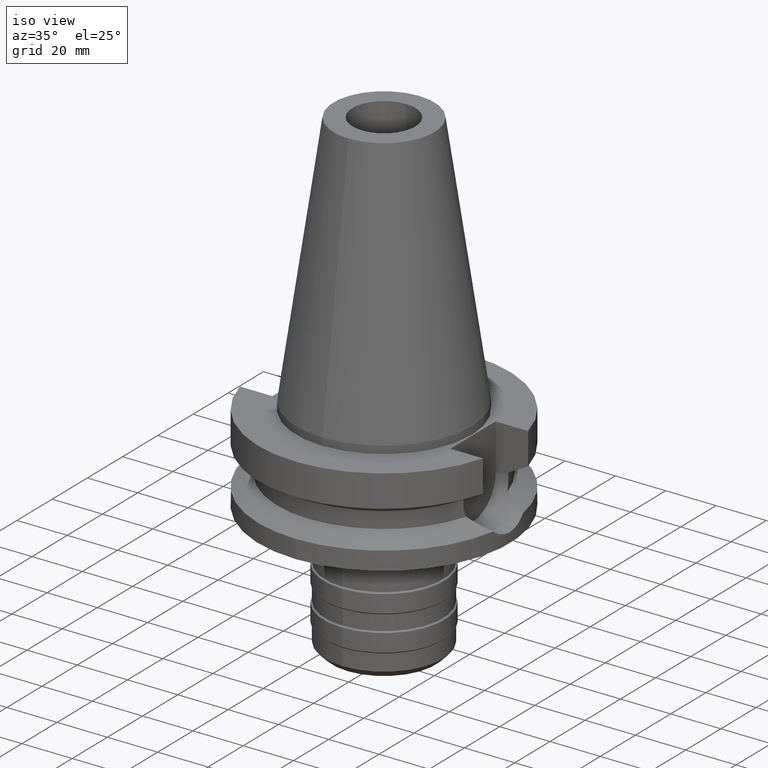
[diagram: clean part render]
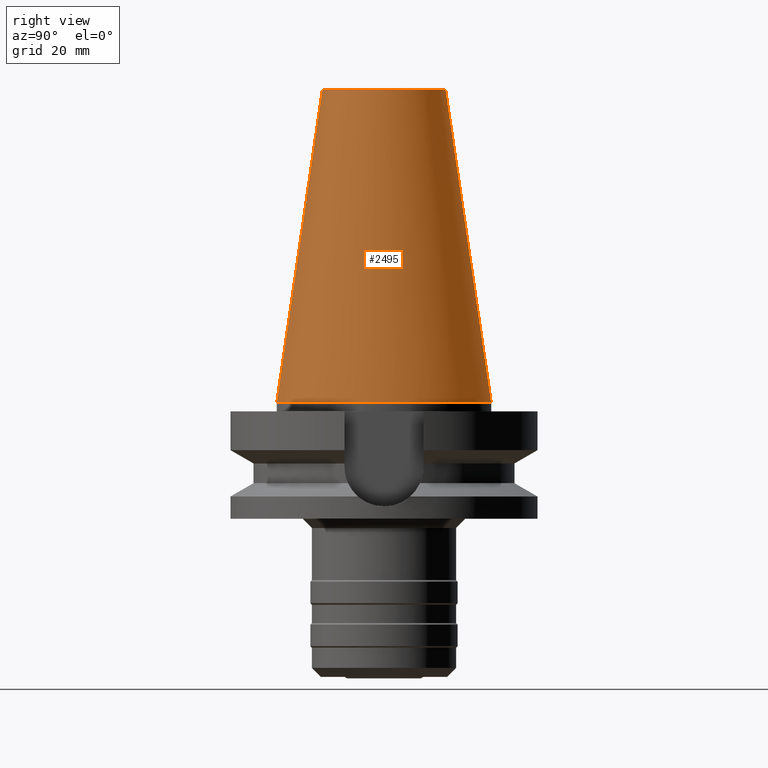
[diagram: tour spotlight — one face highlighted and labeled with its STEP entity id]
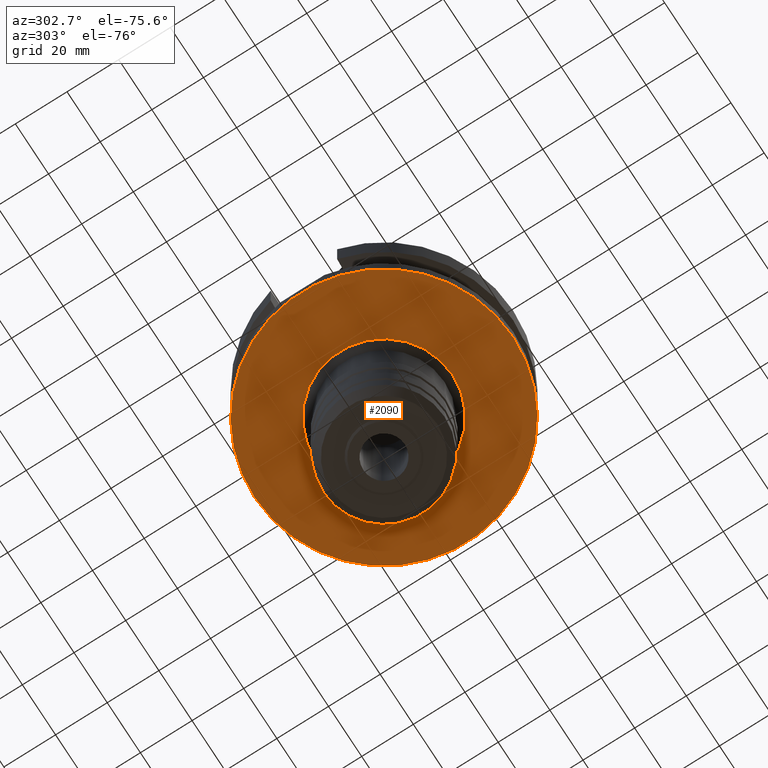
[diagram: tour spotlight — one face highlighted and labeled with its STEP entity id]
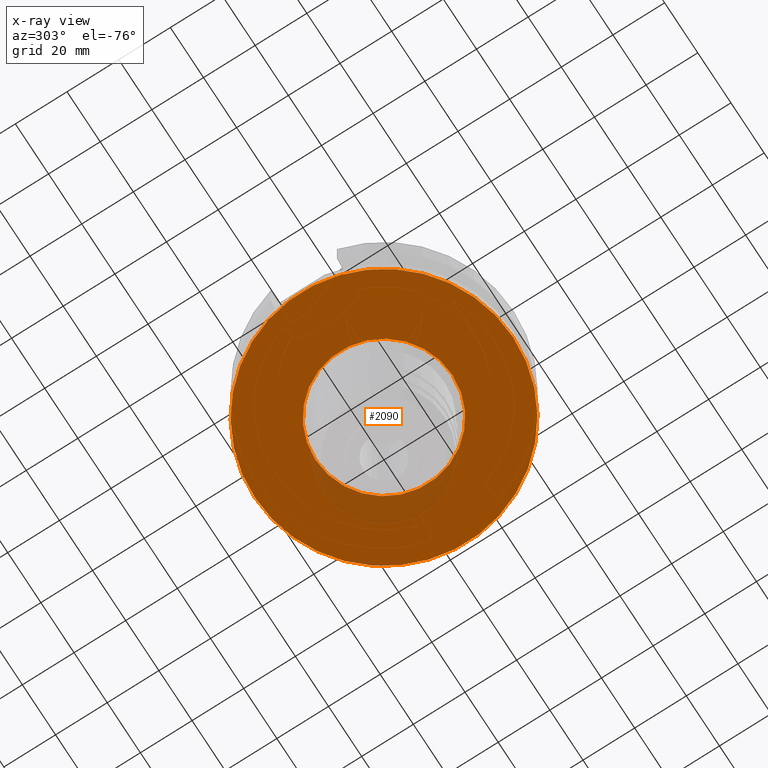
[diagram: x-ray of the same camera — body ghosted, this tour face saturated]
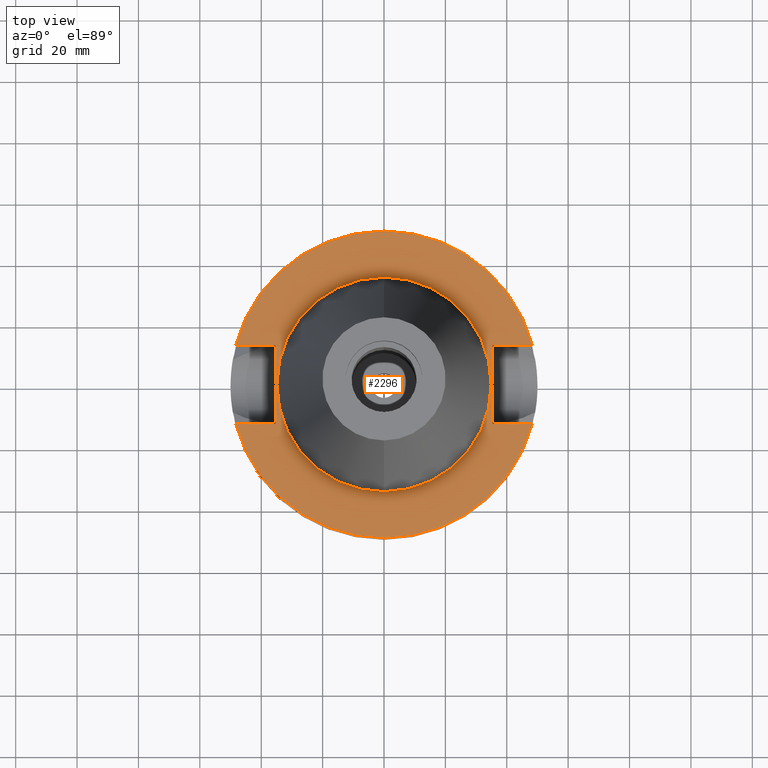
[diagram: tour spotlight — one face highlighted and labeled with its STEP entity id]
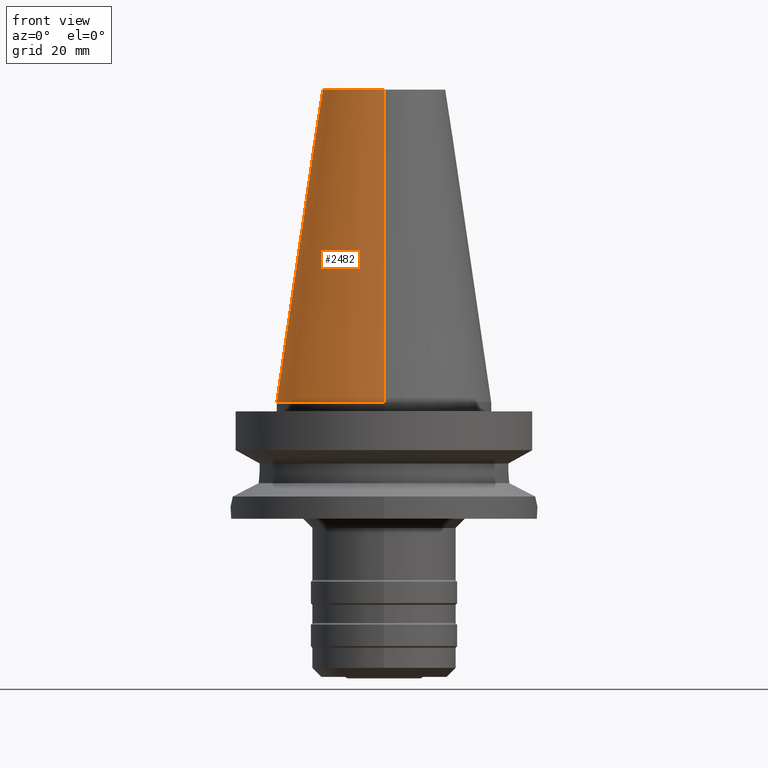
[diagram: tour spotlight — one face highlighted and labeled with its STEP entity id]
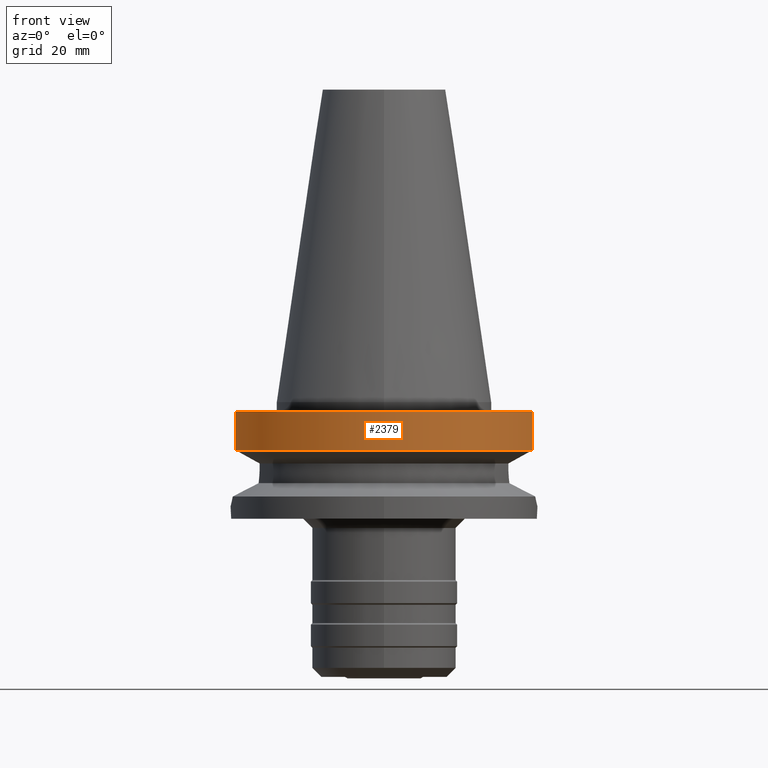
[diagram: tour spotlight — one face highlighted and labeled with its STEP entity id]
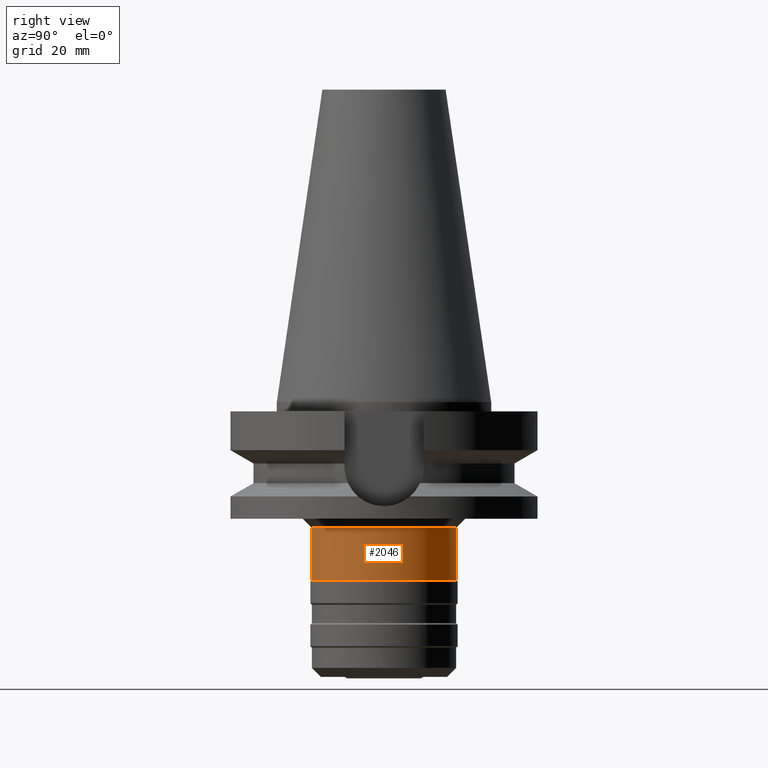
[diagram: tour spotlight — one face highlighted and labeled with its STEP entity id]
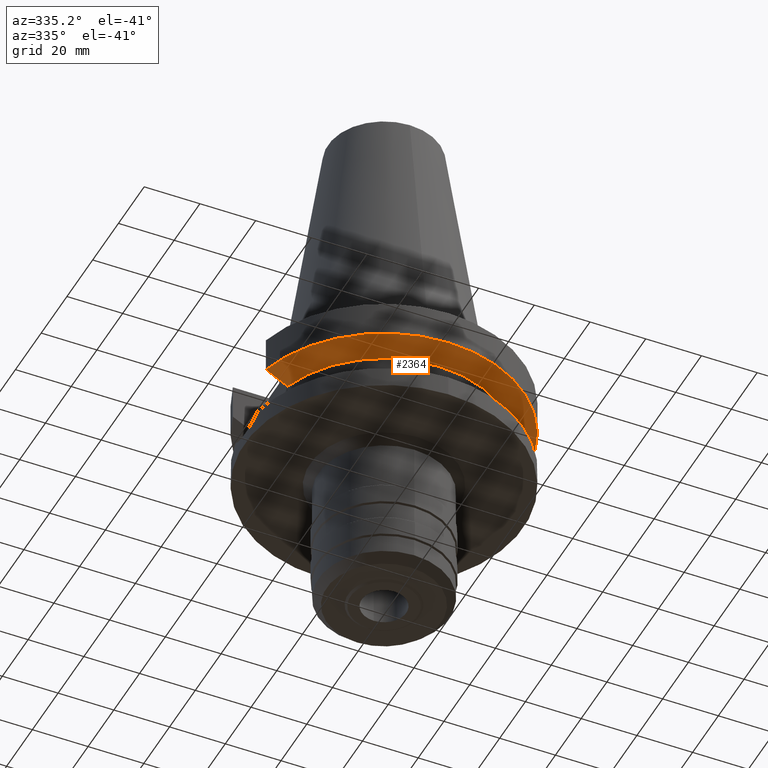
[diagram: tour spotlight — one face highlighted and labeled with its STEP entity id]
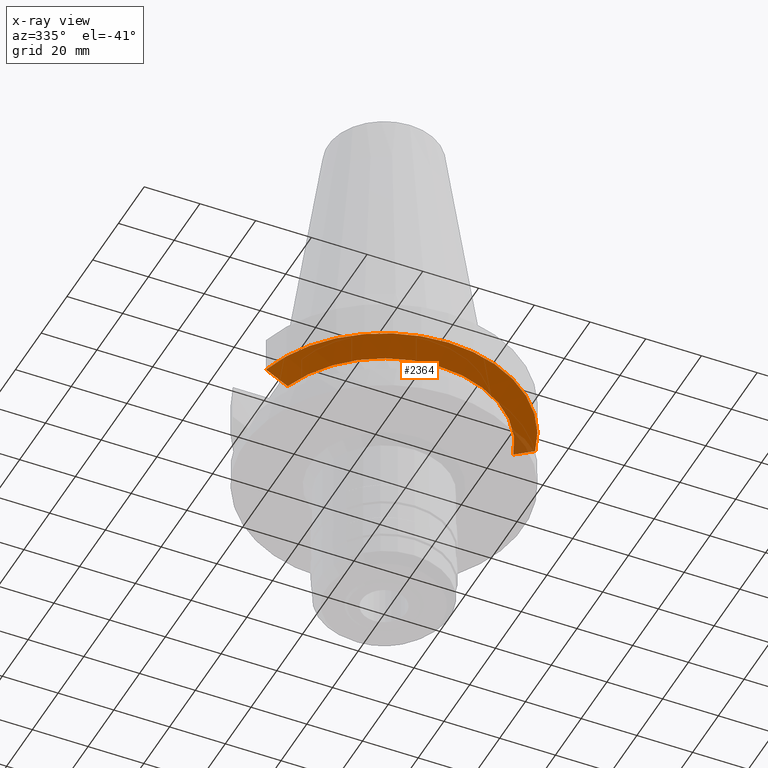
[diagram: x-ray of the same camera — body ghosted, this tour face saturated]
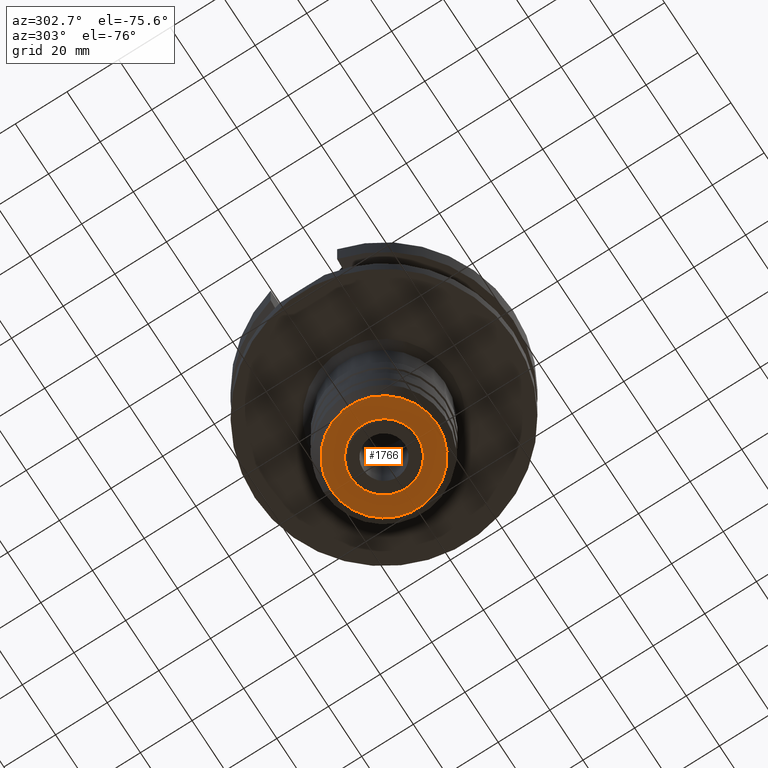
[diagram: tour spotlight — one face highlighted and labeled with its STEP entity id]
A machine part: a face-by-face anatomy tour. The part has 67 B-rep faces; the first image is the clean iso view, then the 8 largest visible faces are spotlighted one at a time (largest first), each with its STEP entity span.

Face 1 — right view, entity #2495. In plain terms, the highlighted conical surface has half-angle 8.297 deg.
Definition (entity closure, byte-faithful):
#1218=DIRECTION('',(0.E0,-1.443043893539E-1,-9.895333461856E-1));
#1219=VECTOR('',#1218,1.028767755957E2);
#1220=CARTESIAN_POINT('',(0.E0,-2.007942971896E1,1.018E2));
#1221=LINE('',#1220,#1219);
#1233=DIRECTION('',(0.E0,1.443043893539E-1,-9.895333461856E-1));
#1234=VECTOR('',#1233,1.028767755957E2);
#1235=CARTESIAN_POINT('',(0.E0,2.007942971896E1,1.018E2));
#1236=LINE('',#1235,#1234);
#1240=CARTESIAN_POINT('',(0.E0,1.847992019913E-14,3.979039320257E-13));
#1241=DIRECTION('',(0.E0,0.E0,-1.E0));
#1242=DIRECTION('',(0.E0,1.E0,0.E0));
#1243=AXIS2_PLACEMENT_3D('',#1240,#1241,#1242);
#1256=CARTESIAN_POINT('',(0.E0,1.847992019913E-14,1.018E2));
#1257=DIRECTION('',(0.E0,0.E0,-1.E0));
#1258=DIRECTION('',(0.E0,1.E0,0.E0));
#1259=AXIS2_PLACEMENT_3D('',#1256,#1257,#1258);
#1457=CARTESIAN_POINT('',(0.E0,3.4925E1,4.902744876745E-13));
#1458=VERTEX_POINT('',#1457);
#1459=CARTESIAN_POINT('',(0.E0,-3.4925E1,4.902744876745E-13));
#1460=VERTEX_POINT('',#1459);
#1461=CARTESIAN_POINT('',(0.E0,2.007942971896E1,1.018E2));
#1462=VERTEX_POINT('',#1461);
#1463=CARTESIAN_POINT('',(0.E0,-2.007942971896E1,1.018E2));
#1464=VERTEX_POINT('',#1463);
#2483=CARTESIAN_POINT('',(0.E0,1.847992019913E-14,5.09E1));
#2484=DIRECTION('',(0.E0,0.E0,-1.E0));
#2485=DIRECTION('',(0.E0,-1.E0,0.E0));
#2486=AXIS2_PLACEMENT_3D('',#2483,#2484,#2485);
#2487=CONICAL_SURFACE('',#2486,2.750221485948E1,8.297E0);
#2488=ORIENTED_EDGE('',*,*,#2473,.T.);
#2489=ORIENTED_EDGE('',*,*,#2450,.T.);
#2490=ORIENTED_EDGE('',*,*,#2477,.F.);
#2492=ORIENTED_EDGE('',*,*,#2491,.F.);
#2493=EDGE_LOOP('',(#2488,#2489,#2490,#2492));
#2494=FACE_OUTER_BOUND('',#2493,.F.);
#1244=CIRCLE('',#1243,3.4925E1);
#1260=CIRCLE('',#1259,2.007942971896E1);
#2450=EDGE_CURVE('',#1458,#1460,#1244,.T.);
#2473=EDGE_CURVE('',#1462,#1458,#1236,.T.);
#2477=EDGE_CURVE('',#1464,#1460,#1221,.T.);
#2491=EDGE_CURVE('',#1462,#1464,#1260,.T.);
#2495=ADVANCED_FACE('',(#2494),#2487,.T.);

Face 2 — auxiliary view, entity #2090. An x-ray twin of the same camera follows (body ghosted, this face saturated) — the face is partly hidden behind the body. In plain terms, the highlighted planar face has unit normal (0, 0, -1).
Definition (entity closure, byte-faithful):
#638=CARTESIAN_POINT('',(0.E0,2.588780868718E-14,-3.8E1));
#639=DIRECTION('',(0.E0,0.E0,1.E0));
#640=DIRECTION('',(0.E0,-1.E0,0.E0));
#641=AXIS2_PLACEMENT_3D('',#638,#639,#640);
#646=CARTESIAN_POINT('',(0.E0,2.588780868718E-14,-3.8E1));
#647=DIRECTION('',(0.E0,0.E0,1.E0));
#648=DIRECTION('',(0.E0,1.E0,0.E0));
#649=AXIS2_PLACEMENT_3D('',#646,#647,#648);
#654=CARTESIAN_POINT('',(0.E0,0.E0,-3.8E1));
#655=DIRECTION('',(0.E0,0.E0,-1.E0));
#656=DIRECTION('',(0.E0,-1.E0,0.E0));
#657=AXIS2_PLACEMENT_3D('',#654,#655,#656);
#662=CARTESIAN_POINT('',(0.E0,0.E0,-3.8E1));
#663=DIRECTION('',(0.E0,0.E0,-1.E0));
#664=DIRECTION('',(0.E0,1.E0,0.E0));
#665=AXIS2_PLACEMENT_3D('',#662,#663,#664);
#1376=CARTESIAN_POINT('',(0.E0,2.65E1,-3.8E1));
#1377=VERTEX_POINT('',#1376);
#1378=CARTESIAN_POINT('',(0.E0,-2.65E1,-3.8E1));
#1379=VERTEX_POINT('',#1378);
#1380=CARTESIAN_POINT('',(0.E0,-5.E1,-3.8E1));
#1381=CARTESIAN_POINT('',(0.E0,5.E1,-3.8E1));
#1382=VERTEX_POINT('',#1380);
#1383=VERTEX_POINT('',#1381);
#2075=CARTESIAN_POINT('',(0.E0,0.E0,-3.8E1));
#2076=DIRECTION('',(0.E0,0.E0,-1.E0));
#2077=DIRECTION('',(0.E0,-1.E0,0.E0));
#2078=AXIS2_PLACEMENT_3D('',#2075,#2076,#2077);
#2079=PLANE('',#2078);
#2081=ORIENTED_EDGE('',*,*,#2080,.T.);
#2083=ORIENTED_EDGE('',*,*,#2082,.T.);
#2084=EDGE_LOOP('',(#2081,#2083));
#2085=FACE_OUTER_BOUND('',#2084,.F.);
#2086=ORIENTED_EDGE('',*,*,#2068,.T.);
#2087=ORIENTED_EDGE('',*,*,#2057,.T.);
#2088=EDGE_LOOP('',(#2086,#2087));
#2089=FACE_BOUND('',#2088,.F.);
#642=CIRCLE('',#641,5.E1);
#650=CIRCLE('',#649,5.E1);
#658=CIRCLE('',#657,2.65E1);
#666=CIRCLE('',#665,2.65E1);
#2057=EDGE_CURVE('',#1377,#1379,#666,.T.);
#2068=EDGE_CURVE('',#1379,#1377,#658,.T.);
#2080=EDGE_CURVE('',#1382,#1383,#642,.T.);
#2082=EDGE_CURVE('',#1383,#1382,#650,.T.);
#2090=ADVANCED_FACE('',(#2085,#2089),#2079,.T.);

Face 3 — top view, entity #2296. In plain terms, the highlighted planar face has unit normal (0, 0, -1).
Definition (entity closure, byte-faithful):
#888=DIRECTION('',(1.E0,0.E0,0.E0));
#889=VECTOR('',#888,1.292057015392E1);
#890=CARTESIAN_POINT('',(3.54E1,1.285E1,-3.E0));
#891=LINE('',#890,#889);
#935=DIRECTION('',(0.E0,1.E0,0.E0));
#936=VECTOR('',#935,2.57E1);
#937=CARTESIAN_POINT('',(-3.54E1,-1.285E1,-3.E0));
#938=LINE('',#937,#936);
#942=DIRECTION('',(-1.E0,0.E0,0.E0));
#943=VECTOR('',#942,1.292057015392E1);
#944=CARTESIAN_POINT('',(-3.54E1,1.285E1,-3.E0));
#945=LINE('',#944,#943);
#949=CARTESIAN_POINT('',(0.E0,2.588780868718E-14,-3.E0));
#950=DIRECTION('',(0.E0,0.E0,-1.E0));
#951=DIRECTION('',(-9.664114030784E-1,2.57E-1,0.E0));
#952=AXIS2_PLACEMENT_3D('',#949,#950,#951);
#957=CARTESIAN_POINT('',(0.E0,2.588780868718E-14,-3.E0));
#958=DIRECTION('',(0.E0,0.E0,-1.E0));
#959=DIRECTION('',(0.E0,1.E0,0.E0));
#960=AXIS2_PLACEMENT_3D('',#957,#958,#959);
#965=DIRECTION('',(0.E0,-1.E0,0.E0));
#966=VECTOR('',#965,2.57E1);
#967=CARTESIAN_POINT('',(3.54E1,1.285E1,-3.E0));
#968=LINE('',#967,#966);
#972=DIRECTION('',(1.E0,0.E0,0.E0));
#973=VECTOR('',#972,1.292057015392E1);
#974=CARTESIAN_POINT('',(3.54E1,-1.285E1,-3.E0));
#975=LINE('',#974,#973);
#979=CARTESIAN_POINT('',(0.E0,2.588780868718E-14,-3.E0));
#980=DIRECTION('',(0.E0,0.E0,-1.E0));
#981=DIRECTION('',(9.664114030784E-1,-2.57E-1,0.E0));
#982=AXIS2_PLACEMENT_3D('',#979,#980,#981);
#987=CARTESIAN_POINT('',(0.E0,2.588780868718E-14,-3.E0));
#988=DIRECTION('',(0.E0,0.E0,-1.E0));
#989=DIRECTION('',(0.E0,-1.E0,0.E0));
#990=AXIS2_PLACEMENT_3D('',#987,#988,#989);
#995=CARTESIAN_POINT('',(0.E0,2.588780868718E-14,-3.E0));
#996=DIRECTION('',(0.E0,0.E0,1.E0));
#997=DIRECTION('',(0.E0,-1.E0,0.E0));
#998=AXIS2_PLACEMENT_3D('',#995,#996,#997);
#1003=CARTESIAN_POINT('',(0.E0,2.588780868718E-14,-3.E0));
#1004=DIRECTION('',(0.E0,0.E0,1.E0));
#1005=DIRECTION('',(0.E0,1.E0,0.E0));
#1006=AXIS2_PLACEMENT_3D('',#1003,#1004,#1005);
#1041=DIRECTION('',(-1.E0,0.E0,0.E0));
#1042=VECTOR('',#1041,1.292057015392E1);
#1043=CARTESIAN_POINT('',(-3.54E1,-1.285E1,-3.E0));
#1044=LINE('',#1043,#1042);
#1431=CARTESIAN_POINT('',(-3.54E1,-1.285E1,-3.E0));
#1432=VERTEX_POINT('',#1431);
#1433=CARTESIAN_POINT('',(-4.832057015392E1,-1.285E1,-3.E0));
#1434=VERTEX_POINT('',#1433);
#1437=CARTESIAN_POINT('',(-3.54E1,1.285E1,-3.E0));
#1438=VERTEX_POINT('',#1437);
#1439=CARTESIAN_POINT('',(-4.832057015392E1,1.285E1,-3.E0));
#1440=VERTEX_POINT('',#1439);
#1441=CARTESIAN_POINT('',(-1.065814103640E-14,5.E1,-3.E0));
#1442=CARTESIAN_POINT('',(4.832057015392E1,1.285E1,-3.E0));
#1443=VERTEX_POINT('',#1441);
#1444=VERTEX_POINT('',#1442);
#1445=CARTESIAN_POINT('',(3.54E1,1.285E1,-3.E0));
#1446=VERTEX_POINT('',#1445);
#1447=CARTESIAN_POINT('',(3.54E1,-1.285E1,-3.E0));
#1448=VERTEX_POINT('',#1447);
#1449=CARTESIAN_POINT('',(4.832057015392E1,-1.285E1,-3.E0));
#1450=VERTEX_POINT('',#1449);
#1451=CARTESIAN_POINT('',(1.065814103640E-14,-5.E1,-3.E0));
#1452=VERTEX_POINT('',#1451);
#1453=CARTESIAN_POINT('',(0.E0,-3.4925E1,-3.E0));
#1454=CARTESIAN_POINT('',(0.E0,3.4925E1,-3.E0));
#1455=VERTEX_POINT('',#1453);
#1456=VERTEX_POINT('',#1454);
#2265=CARTESIAN_POINT('',(0.E0,1.187907395173E-14,-3.E0));
#2266=DIRECTION('',(0.E0,0.E0,-1.E0));
#2267=DIRECTION('',(0.E0,-1.E0,0.E0));
#2268=AXIS2_PLACEMENT_3D('',#2265,#2266,#2267);
#2269=PLANE('',#2268);
#2271=ORIENTED_EDGE('',*,*,#2270,.T.);
#2273=ORIENTED_EDGE('',*,*,#2272,.T.);
#2275=ORIENTED_EDGE('',*,*,#2274,.T.);
#2277=ORIENTED_EDGE('',*,*,#2276,.T.);
#2278=ORIENTED_EDGE('',*,*,#2241,.F.);
#2279=ORIENTED_EDGE('',*,*,#2255,.T.);
#2281=ORIENTED_EDGE('',*,*,#2280,.T.);
#2283=ORIENTED_EDGE('',*,*,#2282,.T.);
#2285=ORIENTED_EDGE('',*,*,#2284,.T.);
#2287=ORIENTED_EDGE('',*,*,#2286,.F.);
#2288=EDGE_LOOP('',(#2271,#2273,#2275,#2277,#2278,#2279,#2281,#2283,#2285,
#2287));
#2289=FACE_OUTER_BOUND('',#2288,.F.);
#2291=ORIENTED_EDGE('',*,*,#2290,.T.);
#2293=ORIENTED_EDGE('',*,*,#2292,.T.);
#2294=EDGE_LOOP('',(#2291,#2293));
#2295=FACE_BOUND('',#2294,.F.);
#953=CIRCLE('',#952,5.E1);
#961=CIRCLE('',#960,5.E1);
#983=CIRCLE('',#982,5.E1);
#991=CIRCLE('',#990,5.E1);
#999=CIRCLE('',#998,3.4925E1);
#1007=CIRCLE('',#1006,3.4925E1);
#2241=EDGE_CURVE('',#1446,#1444,#891,.T.);
#2255=EDGE_CURVE('',#1446,#1448,#968,.T.);
#2270=EDGE_CURVE('',#1432,#1438,#938,.T.);
#2272=EDGE_CURVE('',#1438,#1440,#945,.T.);
#2274=EDGE_CURVE('',#1440,#1443,#953,.T.);
#2276=EDGE_CURVE('',#1443,#1444,#961,.T.);
#2280=EDGE_CURVE('',#1448,#1450,#975,.T.);
#2282=EDGE_CURVE('',#1450,#1452,#983,.T.);
#2284=EDGE_CURVE('',#1452,#1434,#991,.T.);
#2286=EDGE_CURVE('',#1432,#1434,#1044,.T.);
#2290=EDGE_CURVE('',#1455,#1456,#999,.T.);
#2292=EDGE_CURVE('',#1456,#1455,#1007,.T.);
#2296=ADVANCED_FACE('',(#2289,#2295),#2269,.F.);

Face 4 — front view, entity #2482. In plain terms, the highlighted conical surface has half-angle 8.297 deg.
Definition (entity closure, byte-faithful):
#1218=DIRECTION('',(0.E0,-1.443043893539E-1,-9.895333461856E-1));
#1219=VECTOR('',#1218,1.028767755957E2);
#1220=CARTESIAN_POINT('',(0.E0,-2.007942971896E1,1.018E2));
#1221=LINE('',#1220,#1219);
#1225=CARTESIAN_POINT('',(0.E0,1.847992019913E-14,3.979039320257E-13));
#1226=DIRECTION('',(0.E0,0.E0,-1.E0));
#1227=DIRECTION('',(0.E0,-1.E0,0.E0));
#1228=AXIS2_PLACEMENT_3D('',#1225,#1226,#1227);
#1233=DIRECTION('',(0.E0,1.443043893539E-1,-9.895333461856E-1));
#1234=VECTOR('',#1233,1.028767755957E2);
#1235=CARTESIAN_POINT('',(0.E0,2.007942971896E1,1.018E2));
#1236=LINE('',#1235,#1234);
#1248=CARTESIAN_POINT('',(0.E0,1.847992019913E-14,1.018E2));
#1249=DIRECTION('',(0.E0,0.E0,-1.E0));
#1250=DIRECTION('',(0.E0,-1.E0,0.E0));
#1251=AXIS2_PLACEMENT_3D('',#1248,#1249,#1250);
#1457=CARTESIAN_POINT('',(0.E0,3.4925E1,4.902744876745E-13));
#1458=VERTEX_POINT('',#1457);
#1459=CARTESIAN_POINT('',(0.E0,-3.4925E1,4.902744876745E-13));
#1460=VERTEX_POINT('',#1459);
#1461=CARTESIAN_POINT('',(0.E0,2.007942971896E1,1.018E2));
#1462=VERTEX_POINT('',#1461);
#1463=CARTESIAN_POINT('',(0.E0,-2.007942971896E1,1.018E2));
#1464=VERTEX_POINT('',#1463);
#2468=CARTESIAN_POINT('',(0.E0,1.847992019913E-14,5.09E1));
#2469=DIRECTION('',(0.E0,0.E0,-1.E0));
#2470=DIRECTION('',(0.E0,-1.E0,0.E0));
#2471=AXIS2_PLACEMENT_3D('',#2468,#2469,#2470);
#2472=CONICAL_SURFACE('',#2471,2.750221485948E1,8.297E0);
#2474=ORIENTED_EDGE('',*,*,#2473,.F.);
#2476=ORIENTED_EDGE('',*,*,#2475,.F.);
#2478=ORIENTED_EDGE('',*,*,#2477,.T.);
#2479=ORIENTED_EDGE('',*,*,#2461,.T.);
#2480=EDGE_LOOP('',(#2474,#2476,#2478,#2479));
#2481=FACE_OUTER_BOUND('',#2480,.F.);
#1229=CIRCLE('',#1228,3.4925E1);
#1252=CIRCLE('',#1251,2.007942971896E1);
#2461=EDGE_CURVE('',#1460,#1458,#1229,.T.);
#2473=EDGE_CURVE('',#1462,#1458,#1236,.T.);
#2475=EDGE_CURVE('',#1464,#1462,#1252,.T.);
#2477=EDGE_CURVE('',#1464,#1460,#1221,.T.);
#2482=ADVANCED_FACE('',(#2481),#2472,.T.);

Face 5 — front view, entity #2379. In plain terms, the highlighted cylindrical surface (partial cylindrical patch) has radius 50 mm, axis along (0, 0, -1).
Definition (entity closure, byte-faithful):
#979=CARTESIAN_POINT('',(0.E0,2.588780868718E-14,-3.E0));
#980=DIRECTION('',(0.E0,0.E0,-1.E0));
#981=DIRECTION('',(9.664114030784E-1,-2.57E-1,0.E0));
#982=AXIS2_PLACEMENT_3D('',#979,#980,#981);
#987=CARTESIAN_POINT('',(0.E0,2.588780868718E-14,-3.E0));
#988=DIRECTION('',(0.E0,0.E0,-1.E0));
#989=DIRECTION('',(0.E0,-1.E0,0.E0));
#990=AXIS2_PLACEMENT_3D('',#987,#988,#989);
#1092=CARTESIAN_POINT('',(0.E0,1.006319759054E-14,-1.566269223573E1));
#1093=DIRECTION('',(0.E0,0.E0,1.E0));
#1094=DIRECTION('',(-9.664114030784E-1,-2.57E-1,0.E0));
#1095=AXIS2_PLACEMENT_3D('',#1092,#1093,#1094);
#1100=CARTESIAN_POINT('',(0.E0,1.006319759054E-14,-1.566269223573E1));
#1101=DIRECTION('',(0.E0,0.E0,1.E0));
#1102=DIRECTION('',(0.E0,-1.E0,0.E0));
#1103=AXIS2_PLACEMENT_3D('',#1100,#1101,#1102);
#1124=DIRECTION('',(-8.078179312879E-8,3.037680749380E-7,1.E0));
#1125=VECTOR('',#1124,1.266265777902E1);
#1126=CARTESIAN_POINT('',(-4.832056913101E1,-1.285000384651E1,
-1.566265777902E1));
#1127=LINE('',#1126,#1125);
#1131=DIRECTION('',(-8.069162171509E-8,-3.034290000932E-7,-1.E0));
#1132=VECTOR('',#1131,1.266265781748E1);
#1133=CARTESIAN_POINT('',(4.832057015392E1,-1.285E1,-3.E0));
#1134=LINE('',#1133,#1132);
#1433=CARTESIAN_POINT('',(-4.832057015392E1,-1.285E1,-3.E0));
#1434=VERTEX_POINT('',#1433);
#1435=CARTESIAN_POINT('',(-4.832056913101E1,-1.285000384651E1,
-1.566265777902E1));
#1436=VERTEX_POINT('',#1435);
#1449=CARTESIAN_POINT('',(4.832057015392E1,-1.285E1,-3.E0));
#1450=VERTEX_POINT('',#1449);
#1451=CARTESIAN_POINT('',(1.065814103640E-14,-5.E1,-3.E0));
#1452=VERTEX_POINT('',#1451);
#1466=CARTESIAN_POINT('',(0.E0,-5.E1,-1.566269223573E1));
#1467=CARTESIAN_POINT('',(4.832057015392E1,-1.285E1,-1.566269223573E1));
#1468=VERTEX_POINT('',#1466);
#1469=VERTEX_POINT('',#1467);
#2365=CARTESIAN_POINT('',(0.E0,2.588780868718E-14,1.1139E2));
#2366=DIRECTION('',(0.E0,0.E0,-1.E0));
#2367=DIRECTION('',(0.E0,-1.E0,0.E0));
#2368=AXIS2_PLACEMENT_3D('',#2365,#2366,#2367);
#2369=CYLINDRICAL_SURFACE('',#2368,5.E1);
#2370=ORIENTED_EDGE('',*,*,#2322,.T.);
#2371=ORIENTED_EDGE('',*,*,#2284,.F.);
#2372=ORIENTED_EDGE('',*,*,#2282,.F.);
#2374=ORIENTED_EDGE('',*,*,#2373,.T.);
#2375=ORIENTED_EDGE('',*,*,#2356,.F.);
#2376=ORIENTED_EDGE('',*,*,#2354,.F.);
#2377=EDGE_LOOP('',(#2370,#2371,#2372,#2374,#2375,#2376));
#2378=FACE_OUTER_BOUND('',#2377,.F.);
#983=CIRCLE('',#982,5.E1);
#991=CIRCLE('',#990,5.E1);
#1096=CIRCLE('',#1095,5.E1);
#1104=CIRCLE('',#1103,5.E1);
#2282=EDGE_CURVE('',#1450,#1452,#983,.T.);
#2284=EDGE_CURVE('',#1452,#1434,#991,.T.);
#2322=EDGE_CURVE('',#1436,#1434,#1127,.T.);
#2354=EDGE_CURVE('',#1436,#1468,#1096,.T.);
#2356=EDGE_CURVE('',#1468,#1469,#1104,.T.);
#2373=EDGE_CURVE('',#1450,#1469,#1134,.T.);
#2379=ADVANCED_FACE('',(#2378),#2369,.T.);

Face 6 — right view, entity #2046. In plain terms, the highlighted cylindrical surface (partial cylindrical patch) has radius 23.5 mm, axis along (0, 0, -1).
Definition (entity closure, byte-faithful):
#563=CARTESIAN_POINT('',(0.E0,0.E0,-5.8E1));
#564=DIRECTION('',(0.E0,0.E0,1.E0));
#565=DIRECTION('',(0.E0,-1.E0,0.E0));
#566=AXIS2_PLACEMENT_3D('',#563,#564,#565);
#594=DIRECTION('',(0.E0,0.E0,-1.E0));
#595=VECTOR('',#594,1.7E1);
#596=CARTESIAN_POINT('',(0.E0,-2.35E1,-4.1E1));
#597=LINE('',#596,#595);
#601=DIRECTION('',(0.E0,0.E0,-1.E0));
#602=VECTOR('',#601,1.7E1);
#603=CARTESIAN_POINT('',(0.E0,2.35E1,-4.1E1));
#604=LINE('',#603,#602);
#615=CARTESIAN_POINT('',(0.E0,0.E0,-4.1E1));
#616=DIRECTION('',(0.E0,0.E0,-1.E0));
#617=DIRECTION('',(0.E0,1.E0,0.E0));
#618=AXIS2_PLACEMENT_3D('',#615,#616,#617);
#1368=CARTESIAN_POINT('',(0.E0,2.35E1,-5.8E1));
#1369=VERTEX_POINT('',#1368);
#1370=CARTESIAN_POINT('',(0.E0,-2.35E1,-5.8E1));
#1371=VERTEX_POINT('',#1370);
#1372=CARTESIAN_POINT('',(0.E0,2.35E1,-4.1E1));
#1373=VERTEX_POINT('',#1372);
#1374=CARTESIAN_POINT('',(0.E0,-2.35E1,-4.1E1));
#1375=VERTEX_POINT('',#1374);
#2034=CARTESIAN_POINT('',(0.E0,2.588780868718E-14,1.1139E2));
#2035=DIRECTION('',(0.E0,0.E0,-1.E0));
#2036=DIRECTION('',(0.E0,-1.E0,0.E0));
#2037=AXIS2_PLACEMENT_3D('',#2034,#2035,#2036);
#2038=CYLINDRICAL_SURFACE('',#2037,2.35E1);
#2039=ORIENTED_EDGE('',*,*,#2024,.T.);
#2040=ORIENTED_EDGE('',*,*,#2001,.F.);
#2041=ORIENTED_EDGE('',*,*,#2028,.F.);
#2043=ORIENTED_EDGE('',*,*,#2042,.F.);
#2044=EDGE_LOOP('',(#2039,#2040,#2041,#2043));
#2045=FACE_OUTER_BOUND('',#2044,.F.);
#567=CIRCLE('',#566,2.35E1);
#619=CIRCLE('',#618,2.35E1);
#2001=EDGE_CURVE('',#1371,#1369,#567,.T.);
#2024=EDGE_CURVE('',#1373,#1369,#604,.T.);
#2028=EDGE_CURVE('',#1375,#1371,#597,.T.);
#2042=EDGE_CURVE('',#1373,#1375,#619,.T.);
#2046=ADVANCED_FACE('',(#2045),#2038,.T.);

Face 7 — auxiliary view, entity #2364. An x-ray twin of the same camera follows (body ghosted, this face saturated) — the face is partly hidden behind the body. In plain terms, the highlighted conical surface has half-angle 60 deg.
Definition (entity closure, byte-faithful):
#1048=CARTESIAN_POINT('',(-4.832056913101E1,-1.285000384651E1,
-1.566265777902E1));
#1049=CARTESIAN_POINT('',(-4.745408735859E1,-1.285000384651E1,
-1.614611808433E1));
#1050=CARTESIAN_POINT('',(-4.572064906860E1,-1.284999773926E1,
-1.711204634125E1));
#1051=CARTESIAN_POINT('',(-4.311729511248E1,-1.285000214284E1,
-1.855526280760E1));
#1052=CARTESIAN_POINT('',(-4.138011701676E1,-1.284999650721E1,
-1.951445468805E1));
#1053=CARTESIAN_POINT('',(-4.051083299273E1,-1.284999650721E1,
-1.999284605942E1));
#1092=CARTESIAN_POINT('',(0.E0,1.006319759054E-14,-1.566269223573E1));
#1093=DIRECTION('',(0.E0,0.E0,1.E0));
#1094=DIRECTION('',(-9.664114030784E-1,-2.57E-1,0.E0));
#1095=AXIS2_PLACEMENT_3D('',#1092,#1093,#1094);
#1100=CARTESIAN_POINT('',(0.E0,1.006319759054E-14,-1.566269223573E1));
#1101=DIRECTION('',(0.E0,0.E0,1.E0));
#1102=DIRECTION('',(0.E0,-1.E0,0.E0));
#1103=AXIS2_PLACEMENT_3D('',#1100,#1101,#1102);
#1108=CARTESIAN_POINT('',(0.E0,1.006319759054E-14,-1.999281925465E1));
#1109=DIRECTION('',(0.E0,0.E0,-1.E0));
#1110=DIRECTION('',(9.531960443487E-1,-3.023529411765E-1,0.E0));
#1111=AXIS2_PLACEMENT_3D('',#1108,#1109,#1110);
#1116=CARTESIAN_POINT('',(0.E0,1.006319759054E-14,-1.999281925465E1));
#1117=DIRECTION('',(0.E0,0.E0,-1.E0));
#1118=DIRECTION('',(0.E0,-1.E0,0.E0));
#1119=AXIS2_PLACEMENT_3D('',#1116,#1117,#1118);
#1138=CARTESIAN_POINT('',(4.051083299654E1,-1.284999649519E1,
-1.999284615166E1));
#1139=CARTESIAN_POINT('',(4.138011707853E1,-1.284999649519E1,
-1.951445474827E1));
#1140=CARTESIAN_POINT('',(4.311729488159E1,-1.285000214787E1,
-1.855526241239E1));
#1141=CARTESIAN_POINT('',(4.572064880359E1,-1.284999773966E1,
-1.711204586882E1));
#1142=CARTESIAN_POINT('',(4.745408738450E1,-1.285000384222E1,
-1.614611810901E1));
#1143=CARTESIAN_POINT('',(4.832056913215E1,-1.285000384222E1,
-1.566265781748E1));
#1419=CARTESIAN_POINT('',(-4.051083299273E1,-1.284999650721E1,
-1.999284605942E1));
#1420=VERTEX_POINT('',#1419);
#1421=CARTESIAN_POINT('',(4.051083188482E1,-1.285E1,-1.999281925465E1));
#1422=CARTESIAN_POINT('',(0.E0,-4.25E1,-1.999281925465E1));
#1423=VERTEX_POINT('',#1421);
#1424=VERTEX_POINT('',#1422);
#1435=CARTESIAN_POINT('',(-4.832056913101E1,-1.285000384651E1,
-1.566265777902E1));
#1436=VERTEX_POINT('',#1435);
#1466=CARTESIAN_POINT('',(0.E0,-5.E1,-1.566269223573E1));
#1467=CARTESIAN_POINT('',(4.832057015392E1,-1.285E1,-1.566269223573E1));
#1468=VERTEX_POINT('',#1466);
#1469=VERTEX_POINT('',#1467);
#2348=CARTESIAN_POINT('',(0.E0,1.006319759054E-14,-1.782775574519E1));
#2349=DIRECTION('',(0.E0,0.E0,1.E0));
#2350=DIRECTION('',(0.E0,1.E0,0.E0));
#2351=AXIS2_PLACEMENT_3D('',#2348,#2349,#2350);
#2352=CONICAL_SURFACE('',#2351,4.625E1,6.E1);
#2353=ORIENTED_EDGE('',*,*,#2324,.F.);
#2355=ORIENTED_EDGE('',*,*,#2354,.T.);
#2357=ORIENTED_EDGE('',*,*,#2356,.T.);
#2359=ORIENTED_EDGE('',*,*,#2358,.F.);
#2360=ORIENTED_EDGE('',*,*,#2338,.T.);
#2361=ORIENTED_EDGE('',*,*,#2336,.T.);
#2362=EDGE_LOOP('',(#2353,#2355,#2357,#2359,#2360,#2361));
#2363=FACE_OUTER_BOUND('',#2362,.F.);
#1054=B_SPLINE_CURVE_WITH_KNOTS('',3,(#1048,#1049,#1050,#1051,#1052,#1053),
.UNSPECIFIED.,.F.,.F.,(4,1,1,4),(0.E0,3.333333333333E-1,6.666666666667E-1,1.E0),
.UNSPECIFIED.);
#1096=CIRCLE('',#1095,5.E1);
#1104=CIRCLE('',#1103,5.E1);
#1112=CIRCLE('',#1111,4.25E1);
#1120=CIRCLE('',#1119,4.25E1);
#1144=B_SPLINE_CURVE_WITH_KNOTS('',3,(#1138,#1139,#1140,#1141,#1142,#1143),
.UNSPECIFIED.,.F.,.F.,(4,1,1,4),(0.E0,3.333333333333E-1,6.666666666667E-1,1.E0),
.UNSPECIFIED.);
#2324=EDGE_CURVE('',#1436,#1420,#1054,.T.);
#2336=EDGE_CURVE('',#1424,#1420,#1120,.T.);
#2338=EDGE_CURVE('',#1423,#1424,#1112,.T.);
#2354=EDGE_CURVE('',#1436,#1468,#1096,.T.);
#2356=EDGE_CURVE('',#1468,#1469,#1104,.T.);
#2358=EDGE_CURVE('',#1423,#1469,#1144,.T.);
#2364=ADVANCED_FACE('',(#2363),#2352,.T.);

Face 8 — auxiliary view, entity #1766. In plain terms, the highlighted planar face has unit normal (0, 0, -1).
Definition (entity closure, byte-faithful):
#292=CARTESIAN_POINT('',(0.E0,0.E0,-8.95E1));
#293=DIRECTION('',(0.E0,0.E0,1.E0));
#294=DIRECTION('',(0.E0,-1.E0,0.E0));
#295=AXIS2_PLACEMENT_3D('',#292,#293,#294);
#300=CARTESIAN_POINT('',(0.E0,0.E0,-8.95E1));
#301=DIRECTION('',(0.E0,0.E0,1.E0));
#302=DIRECTION('',(0.E0,1.E0,0.E0));
#303=AXIS2_PLACEMENT_3D('',#300,#301,#302);
#308=CARTESIAN_POINT('',(0.E0,0.E0,-8.95E1));
#309=DIRECTION('',(0.E0,0.E0,-1.E0));
#310=DIRECTION('',(0.E0,-1.E0,0.E0));
#311=AXIS2_PLACEMENT_3D('',#308,#309,#310);
#316=CARTESIAN_POINT('',(0.E0,0.E0,-8.95E1));
#317=DIRECTION('',(0.E0,0.E0,-1.E0));
#318=DIRECTION('',(0.E0,1.E0,0.E0));
#319=AXIS2_PLACEMENT_3D('',#316,#317,#318);
#1328=CARTESIAN_POINT('',(0.E0,1.286602540378E1,-8.95E1));
#1329=VERTEX_POINT('',#1328);
#1330=CARTESIAN_POINT('',(0.E0,-1.286602540378E1,-8.95E1));
#1331=VERTEX_POINT('',#1330);
#1332=CARTESIAN_POINT('',(0.E0,-2.0571E1,-8.95E1));
#1333=CARTESIAN_POINT('',(0.E0,2.0571E1,-8.95E1));
#1334=VERTEX_POINT('',#1332);
#1335=VERTEX_POINT('',#1333);
#1751=CARTESIAN_POINT('',(0.E0,0.E0,-8.95E1));
#1752=DIRECTION('',(0.E0,0.E0,-1.E0));
#1753=DIRECTION('',(0.E0,-1.E0,0.E0));
#1754=AXIS2_PLACEMENT_3D('',#1751,#1752,#1753);
#1755=PLANE('',#1754);
#1757=ORIENTED_EDGE('',*,*,#1756,.T.);
#1759=ORIENTED_EDGE('',*,*,#1758,.T.);
#1760=EDGE_LOOP('',(#1757,#1759));
#1761=FACE_OUTER_BOUND('',#1760,.F.);
#1762=ORIENTED_EDGE('',*,*,#1744,.T.);
#1763=ORIENTED_EDGE('',*,*,#1733,.T.);
#1764=EDGE_LOOP('',(#1762,#1763));
#1765=FACE_BOUND('',#1764,.F.);
#296=CIRCLE('',#295,2.0571E1);
#304=CIRCLE('',#303,2.0571E1);
#312=CIRCLE('',#311,1.286602540378E1);
#320=CIRCLE('',#319,1.286602540378E1);
#1733=EDGE_CURVE('',#1329,#1331,#320,.T.);
#1744=EDGE_CURVE('',#1331,#1329,#312,.T.);
#1756=EDGE_CURVE('',#1334,#1335,#296,.T.);
#1758=EDGE_CURVE('',#1335,#1334,#304,.T.);
#1766=ADVANCED_FACE('',(#1761,#1765),#1755,.T.);